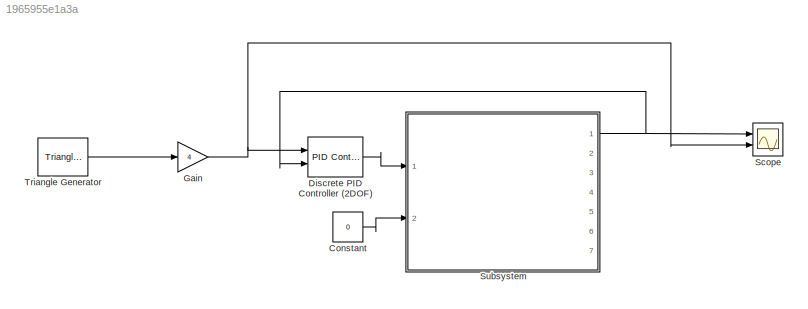
MODEL slx_1965955e1a3a
KIND model
CONFIG AbsTol = auto
CONFIG EnableMultiTasking = off
CONFIG FixedStep = 0.000001
CONFIG MaxStep = auto
CONFIG MinStep = auto
CONFIG RelTol = 1e-3
CONFIG SampleTimeConstraint = Unconstrained
CONFIG Solver = FixedStepAuto
CONFIG SolverName = FixedStepAuto
CONFIG StartTime = 0.0
CONFIG StopTime = 5
BLOCK [Constant] Constant
  Value = 0
BLOCK [Reference] Discrete PID Controller (2DOF)  REF=simulink/Continuous/PID Controller (2DOF)
  Ports = [2, 1]
  SourceBlock = simulink/Continuous/PID Controller (2DOF)
  SourceProductBaseCode = SL
  SourceProductName = Simulink
  SourceType = PID 2dof
BLOCK [Gain] Gain
  Gain = 4
  OutDataTypeStr = Inherit: Inherit via internal rule
  ParamDataTypeStr = Inherit: Inherit via internal rule
  SaturateOnIntegerOverflow = off
BLOCK [Scope] Scope
  Floating = off
  NumInputPorts = 2
  Ports = [2]
  ScopeSpecificationString = Simulink.scopes.TimeScopeBlockCfg('CurrentConfiguration', extmgr.ConfigurationSet(extmgr.Configuration('Core','General UI',true),extmgr.Configuration('Core','Source UI',true),extmgr.Configuration('Sources','WiredSimulink',true),extmgr.Configuration('Visuals','Time Domain',true,'SerializedDisplays',{struct('MinYLimReal','-173.8242','MaxYLimReal','1524.41779','YLabelReal','','MinYLimMag',' 0.00000',...<+1430ch>
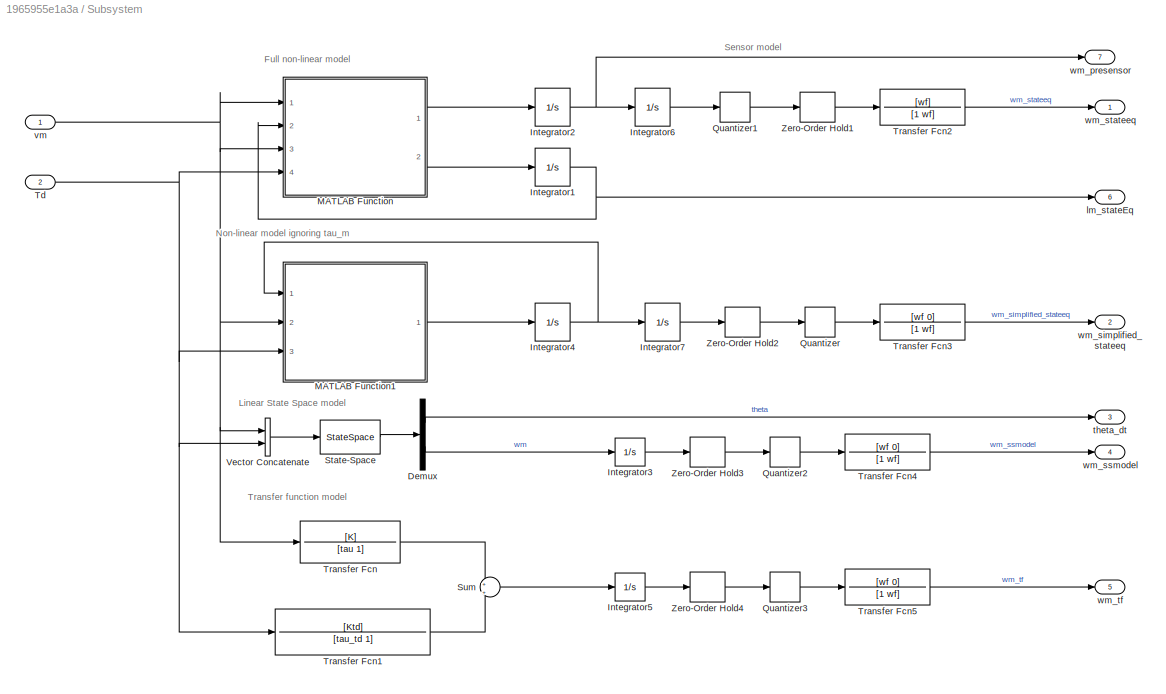
BLOCK [SubSystem] Subsystem
  Ports = [2, 7]
  RequestExecContextInheritance = off
BLOCK [Demux] Subsystem/Demux
  DisplayOption = bar
  Outputs = 2
  Ports = [1, 2]
BLOCK [Integrator] Subsystem/Integrator1
  Ports = [1, 1]
BLOCK [Integrator] Subsystem/Integrator2
  Ports = [1, 1]
BLOCK [Integrator] Subsystem/Integrator3
  Ports = [1, 1]
BLOCK [Integrator] Subsystem/Integrator4
  Ports = [1, 1]
BLOCK [Integrator] Subsystem/Integrator5
  Ports = [1, 1]
BLOCK [Integrator] Subsystem/Integrator6
  Ports = [1, 1]
BLOCK [Integrator] Subsystem/Integrator7
  Ports = [1, 1]
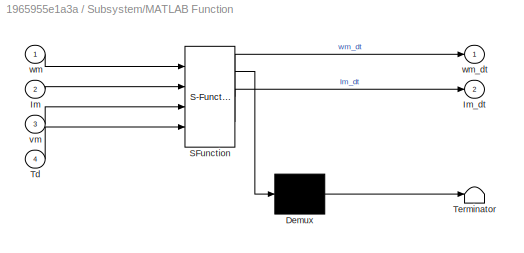
BLOCK [SubSystem] Subsystem/MATLAB Function
  ErrorFcn = Stateflow.Translate.translate
  PermitHierarchicalResolution = ExplicitOnly
  Ports = [4, 2]
  RequestExecContextInheritance = off
  SFBlockType = MATLAB Function
  TreatAsAtomicUnit = on
BLOCK [Demux] Subsystem/MATLAB Function/ Demux 
  Outputs = 1
  Ports = [1, 1]
BLOCK [S-Function] Subsystem/MATLAB Function/ SFunction 
  EnableBusSupport = on
  FunctionName = sf_sfun
  PortCounts = [4 3]
  Ports = [4, 3]
  SFcnIsStateOwnerBlock = off
  SFunctionDeploymentMode = off
  Tag = Stateflow S-Function 2
BLOCK [Terminator] Subsystem/MATLAB Function/ Terminator 
BLOCK [Inport] Subsystem/MATLAB Function/Im
  IconDisplay = Port number
  Port = 2
BLOCK [Outport] Subsystem/MATLAB Function/Im_dt
  IconDisplay = Port number
  Port = 2
  VectorParamsAs1DForOutWhenUnconnected = off
BLOCK [Inport] Subsystem/MATLAB Function/Td
  IconDisplay = Port number
  Port = 4
BLOCK [Inport] Subsystem/MATLAB Function/vm
  IconDisplay = Port number
  Port = 3
BLOCK [Inport] Subsystem/MATLAB Function/wm
  IconDisplay = Port number
BLOCK [Outport] Subsystem/MATLAB Function/wm_dt
  IconDisplay = Port number
  VectorParamsAs1DForOutWhenUnconnected = off
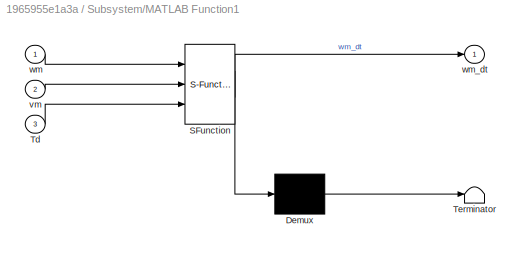
BLOCK [SubSystem] Subsystem/MATLAB Function1
  ErrorFcn = Stateflow.Translate.translate
  PermitHierarchicalResolution = ExplicitOnly
  Ports = [3, 1]
  RequestExecContextInheritance = off
  SFBlockType = MATLAB Function
  TreatAsAtomicUnit = on
BLOCK [Demux] Subsystem/MATLAB Function1/ Demux 
  Outputs = 1
  Ports = [1, 1]
BLOCK [S-Function] Subsystem/MATLAB Function1/ SFunction 
  EnableBusSupport = on
  FunctionName = sf_sfun
  PortCounts = [3 2]
  Ports = [3, 2]
  SFcnIsStateOwnerBlock = off
  SFunctionDeploymentMode = off
  Tag = Stateflow S-Function 1
BLOCK [Terminator] Subsystem/MATLAB Function1/ Terminator 
BLOCK [Inport] Subsystem/MATLAB Function1/Td
  IconDisplay = Port number
  Port = 3
BLOCK [Inport] Subsystem/MATLAB Function1/vm
  IconDisplay = Port number
  Port = 2
BLOCK [Inport] Subsystem/MATLAB Function1/wm
  IconDisplay = Port number
BLOCK [Outport] Subsystem/MATLAB Function1/wm_dt
  IconDisplay = Port number
  VectorParamsAs1DForOutWhenUnconnected = off
BLOCK [Quantizer] Subsystem/Quantizer
  QuantizationInterval = 0.00153336666666666666666666666667
BLOCK [Quantizer] Subsystem/Quantizer1
  QuantizationInterval = 1/1024
BLOCK [Quantizer] Subsystem/Quantizer2
  QuantizationInterval = 0.00153336666666666666666666666667
BLOCK [Quantizer] Subsystem/Quantizer3
  QuantizationInterval = 0.00153336666666666666666666666667
BLOCK [StateSpace] Subsystem/State-Space
  A = [0 1; 0 -(km*kt+Rm*kt*Io)/(Jeq*Rm_measured)]
  B = [0 0; kt/(Jeq*Rm_measured) -1/Jeq]
  C = [1 0; 0 1]
  D = [0 0; 0 0]
  InitialCondition = 0
  Ports = [1, 1]
BLOCK [Sum] Subsystem/Sum
  IconShape = round
  InputSameDT = off
  Inputs = +|+
  OutDataTypeStr = Inherit: Inherit via internal rule
  Ports = [2, 1]
  SaturateOnIntegerOverflow = off
BLOCK [Inport] Subsystem/Td
  IconDisplay = Port number
  Port = 2
BLOCK [TransferFcn] Subsystem/Transfer Fcn
  Denominator = [tau 1]
  Numerator = [K]
BLOCK [TransferFcn] Subsystem/Transfer Fcn1
  Denominator = [tau_td 1]
  Numerator = [Ktd]
BLOCK [TransferFcn] Subsystem/Transfer Fcn2
  Denominator = [1 wf]
  Numerator = [wf]
BLOCK [TransferFcn] Subsystem/Transfer Fcn3
  Denominator = [1 wf]
  Numerator = [wf 0]
BLOCK [TransferFcn] Subsystem/Transfer Fcn4
  Denominator = [1 wf]
  Numerator = [wf 0]
BLOCK [TransferFcn] Subsystem/Transfer Fcn5
  Denominator = [1 wf]
  Numerator = [wf 0]
BLOCK [Concatenate] Subsystem/Vector Concatenate
  Ports = [2, 1]
BLOCK [ZeroOrderHold] Subsystem/Zero-Order Hold1
  SampleTime = .01
BLOCK [ZeroOrderHold] Subsystem/Zero-Order Hold2
  SampleTime = .01
BLOCK [ZeroOrderHold] Subsystem/Zero-Order Hold3
  SampleTime = .01
BLOCK [ZeroOrderHold] Subsystem/Zero-Order Hold4
  SampleTime = .01
BLOCK [Outport] Subsystem/lm_stateEq
  IconDisplay = Port number
  Port = 6
BLOCK [Outport] Subsystem/theta_dt
  IconDisplay = Port number
  Port = 3
BLOCK [Inport] Subsystem/vm
  IconDisplay = Port number
BLOCK [Outport] Subsystem/wm_presensor
  IconDisplay = Port number
  Port = 7
BLOCK [Outport] Subsystem/wm_simplified_stateeq
  IconDisplay = Port number
  Port = 2
BLOCK [Outport] Subsystem/wm_ssmodel
  IconDisplay = Port number
  Port = 4
BLOCK [Outport] Subsystem/wm_stateeq
  IconDisplay = Port number
BLOCK [Outport] Subsystem/wm_tf
  IconDisplay = Port number
  Port = 5
BLOCK [Reference] Triangle Generator  REF=powerlib_meascontrol/Pulse & Signal
Generators/Triangle
Generator
  Ports = [0, 1]
  SourceBlock = powerlib_meascontrol/Pulse & Signal\nGenerators/Triangle\nGenerator
  SourceProductBaseCode = PS
  SourceProductName = Simscape Electrical
  SourceType = Triangle Generator
ANNOTATION Subsystem: Full non-linear model
ANNOTATION Subsystem: Linear State Space model
ANNOTATION Subsystem: Non-linear model ignoring tau_m
ANNOTATION Subsystem: Sensor model
ANNOTATION Subsystem: Transfer function model
LINE Constant:1 -> Subsystem:2
LINE Discrete PID Controller (2DOF):1 -> Subsystem:1
NET Gain:1 -> Discrete PID Controller (2DOF):1, Scope:2
LINE Subsystem/Demux:1 -> Subsystem/theta_dt:1
LINE Subsystem/Demux:2 -> Subsystem/Integrator3:1
NET Subsystem/Integrator1:1 -> Subsystem/MATLAB Function:2, Subsystem/lm_stateEq:1
NET Subsystem/Integrator2:1 -> Subsystem/Integrator6:1, Subsystem/wm_presensor:1
LINE Subsystem/Integrator3:1 -> Subsystem/Zero-Order Hold3:1
NET Subsystem/Integrator4:1 -> Subsystem/Integrator7:1, Subsystem/MATLAB Function1:1
LINE Subsystem/Integrator5:1 -> Subsystem/Zero-Order Hold4:1
LINE Subsystem/Integrator6:1 -> Subsystem/Quantizer1:1
LINE Subsystem/Integrator7:1 -> Subsystem/Zero-Order Hold2:1
LINE Subsystem/MATLAB Function1:1 -> Subsystem/Integrator4:1
LINE Subsystem/MATLAB Function:1 -> Subsystem/Integrator2:1
LINE Subsystem/MATLAB Function:2 -> Subsystem/Integrator1:1
LINE Subsystem/Quantizer1:1 -> Subsystem/Zero-Order Hold1:1
LINE Subsystem/Quantizer2:1 -> Subsystem/Transfer Fcn4:1
LINE Subsystem/Quantizer3:1 -> Subsystem/Transfer Fcn5:1
LINE Subsystem/Quantizer:1 -> Subsystem/Transfer Fcn3:1
LINE Subsystem/State-Space:1 -> Subsystem/Demux:1
LINE Subsystem/Sum:1 -> Subsystem/Integrator5:1
NET Subsystem/Td:1 -> Subsystem/MATLAB Function1:3, Subsystem/MATLAB Function:4, Subsystem/Transfer Fcn1:1, Subsystem/Vector Concatenate:2
LINE Subsystem/Transfer Fcn1:1 -> Subsystem/Sum:2
LINE Subsystem/Transfer Fcn2:1 -> Subsystem/wm_stateeq:1
LINE Subsystem/Transfer Fcn3:1 -> Subsystem/wm_simplified_stateeq:1
LINE Subsystem/Transfer Fcn4:1 -> Subsystem/wm_ssmodel:1
LINE Subsystem/Transfer Fcn5:1 -> Subsystem/wm_tf:1
LINE Subsystem/Transfer Fcn:1 -> Subsystem/Sum:1
LINE Subsystem/Vector Concatenate:1 -> Subsystem/State-Space:1
LINE Subsystem/Zero-Order Hold1:1 -> Subsystem/Transfer Fcn2:1
LINE Subsystem/Zero-Order Hold2:1 -> Subsystem/Quantizer:1
LINE Subsystem/Zero-Order Hold3:1 -> Subsystem/Quantizer2:1
LINE Subsystem/Zero-Order Hold4:1 -> Subsystem/Quantizer3:1
NET Subsystem/vm:1 -> Subsystem/MATLAB Function1:2, Subsystem/MATLAB Function:1, Subsystem/MATLAB Function:3, Subsystem/Transfer Fcn:1, Subsystem/Vector Concatenate:1
NET Subsystem:1 -> Discrete PID Controller (2DOF):2, Scope:1
LINE Triangle Generator:1 -> Gain:1
note: NET lines group one-source signal fan-out (src -> all destinations, sorted); 1:1 wires keep LINE
CHART Subsystem/MATLAB Function1 states=1 transitions=1
  STATE_LABEL 'eML_blk_kernel()'
  STATE_LABEL 'SCRIPT:\nfunction wm_dt  = wmStateEq_simplified(wm, vm, Td)\n    if abs(vm) >= 15 \n        vm = 15 * sign(vm);\n    end\n    \n    Jeq = 1.16e-6+.5*0.068*.0248^2;\n    kt = 0.0575;\n    Io = .0471;\n    I1 = 3.7e-5;\n    I2 = 6.2e-8;\n%     Io = 0;\n%     I1 = 0;\n%     I2 = 0;\n    Rm = 10.9;\n    km = kt;\n    tau_m = 0;\n    \n    Im = (vm - km*wm*(1+tau_m))/Rm;\n    \n    wm_dt = 1/Jeq * (kt * (Im - Io*sign(wm) ...<+29ch>'
CHART Subsystem/MATLAB Function states=1 transitions=1
  STATE_LABEL 'eML_blk_kernel()'
  STATE_LABEL 'SCRIPT:\nfunction [wm_dt, Im_dt] = wmStateEq(wm, Im, vm, Td)\n    if abs(vm) >= 15\n        vm = 15 * sign(vm);\n    end\n    if abs(Im) > 1.5\n        Im = 1.5;\n    end\n    \n    Jeq = 1.16e-6+.5*0.068*.0248^2;\n    kt = 0.0575;\n    Io = .0471;\n    I1 = 3.7e-5;\n    I2 = 6.2e-8;\n%     Io = 0;\n%     I1 = 0;\n%     I2 = 0;\n    Rm = 10.9;\n    km = kt;\n    tau_m = 8.8e-05;\n    L = 0.82e-3;\n    \n    wm_dt = 1/J...<+117ch>'
